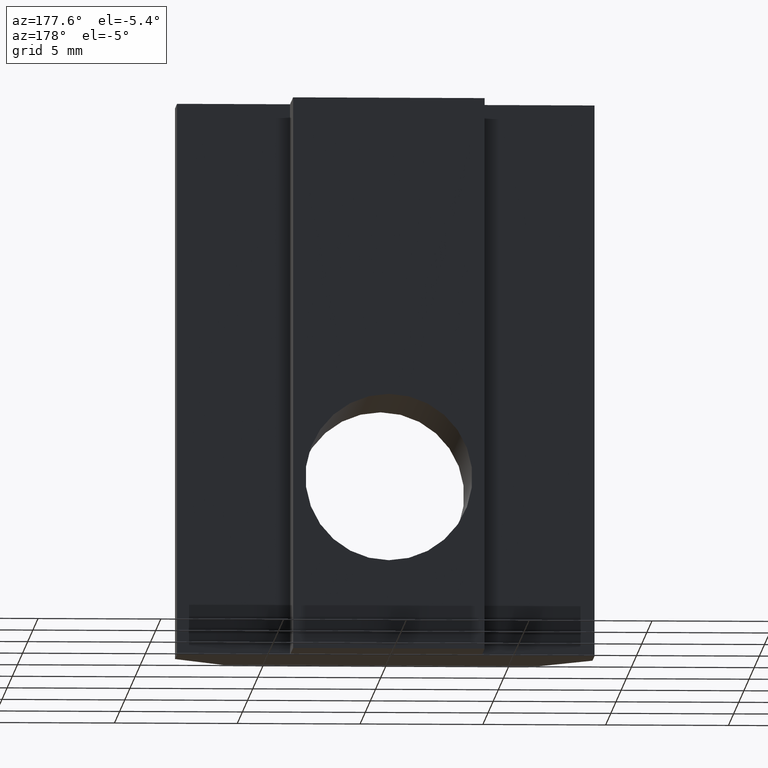
[diagram: clean part render]
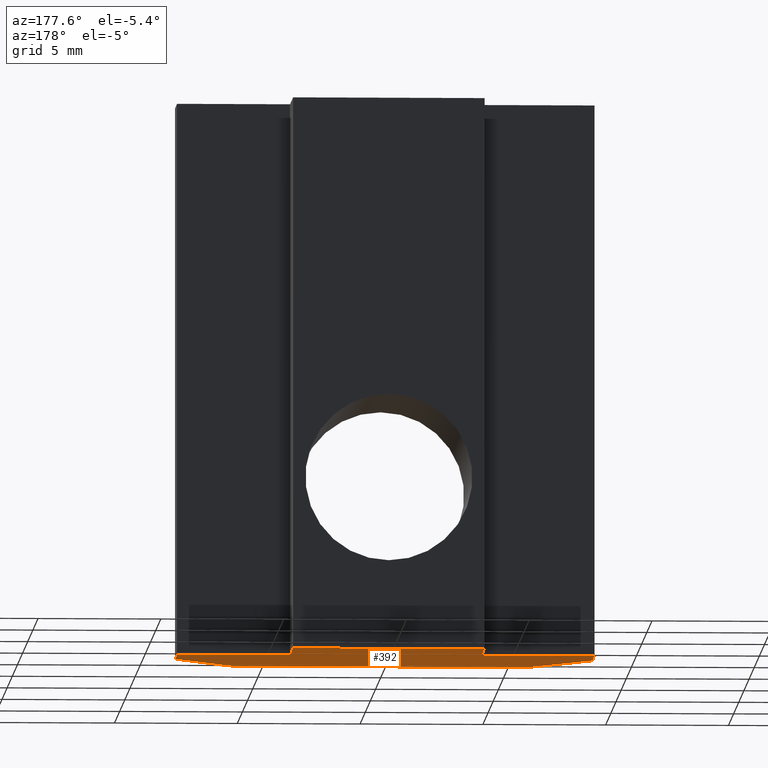
[diagram: same view with one face highlighted and labeled with its STEP entity id]
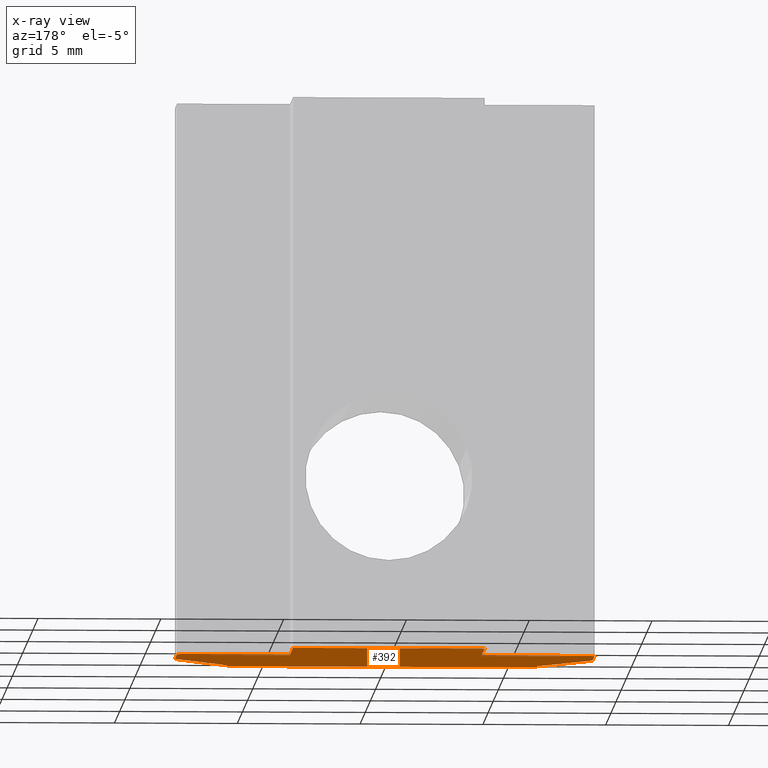
[diagram: x-ray of the same camera — body ghosted, the highlighted face saturated]
A machine part, auxiliary view. The second image highlights one B-rep face of the part: STEP entity #392.
The next image is the same camera in x-ray: the body ghosted, the highlighted face saturated — about 0% of this face is hidden behind the body in this view.
In plain terms, the highlighted planar face has unit normal (0, 0, -1).
Its self-contained STEP definition (entity closure, byte-faithful):
#4 = CARTESIAN_POINT ( 'NONE',  ( 5.999999999999998200, -2.872400319922979400E-015, 0.0000000000000000000 ) ) ;
#6 = CARTESIAN_POINT ( 'NONE',  ( -8.500000000000001800, 3.000000000000000900, 0.0000000000000000000 ) ) ;
#28 = CARTESIAN_POINT ( 'NONE',  ( 5.204170427930421300E-015, -7.200000000000000200, 0.0000000000000000000 ) ) ;
#41 = DIRECTION ( 'NONE',  ( -1.000000000000000000, 0.0000000000000000000, 0.0000000000000000000 ) ) ;
#42 = DIRECTION ( 'NONE',  ( -1.000000000000000000, 0.0000000000000000000, -0.0000000000000000000 ) ) ;
#45 = CARTESIAN_POINT ( 'NONE',  ( 8.499999999999998200, 3.000000000000000900, 0.0000000000000000000 ) ) ;
#70 = DIRECTION ( 'NONE',  ( -1.000000000000000000, -3.771137991253926600E-016, 0.0000000000000000000 ) ) ;
#71 = DIRECTION ( 'NONE',  ( 0.0000000000000000000, -1.000000000000000000, 0.0000000000000000000 ) ) ;
#88 = CARTESIAN_POINT ( 'NONE',  ( -3.900000000000005200, 7.999999999999998200, 0.0000000000000000000 ) ) ;
#91 = CARTESIAN_POINT ( 'NONE',  ( -8.500000000000001800, 5.000000000000000000, 0.0000000000000000000 ) ) ;
#104 = PLANE ( 'NONE',  #249 ) ;
#105 = DIRECTION ( 'NONE',  ( 0.0000000000000000000, 1.000000000000000000, 0.0000000000000000000 ) ) ;
#106 = DIRECTION ( 'NONE',  ( 0.0000000000000000000, 0.0000000000000000000, -1.000000000000000000 ) ) ;
#111 = CARTESIAN_POINT ( 'NONE',  ( 8.499999999999998200, 5.000000000000000900, 0.0000000000000000000 ) ) ;
#112 = DIRECTION ( 'NONE',  ( -1.000000000000000000, -2.224004456380521400E-016, 0.0000000000000000000 ) ) ;
#114 = CARTESIAN_POINT ( 'NONE',  ( 3.899999999999996400, 8.000000000000000000, 0.0000000000000000000 ) ) ;
#115 = DIRECTION ( 'NONE',  ( 8.673617379884041400E-016, -1.000000000000000000, 0.0000000000000000000 ) ) ;
#121 = DIRECTION ( 'NONE',  ( 0.6401843996644800400, -0.7682212795973756300, 0.0000000000000000000 ) ) ;
#122 = DIRECTION ( 'NONE',  ( 1.000000000000000000, -1.169020134121796800E-016, -0.0000000000000000000 ) ) ;
#124 = CARTESIAN_POINT ( 'NONE',  ( 3.899999999999997200, 4.999999999999999100, 0.0000000000000000000 ) ) ;
#126 = CARTESIAN_POINT ( 'NONE',  ( -3.900000000000002600, 5.000000000000000000, 0.0000000000000000000 ) ) ;
#129 = CARTESIAN_POINT ( 'NONE',  ( 5.999999999999998200, -2.872400319922979400E-015, 0.0000000000000000000 ) ) ;
#130 = DIRECTION ( 'NONE',  ( -2.891205793294677800E-016, 1.000000000000000000, 0.0000000000000000000 ) ) ;
#134 = DIRECTION ( 'NONE',  ( 0.6401843996644793800, 0.7682212795973761800, 0.0000000000000000000 ) ) ;
#140 = LINE ( 'NONE', #129, #141 ) ;
#141 = VECTOR ( 'NONE', #134, 1000.000000000000300 ) ;
#150 = LINE ( 'NONE', #126, #151 ) ;
#151 = VECTOR ( 'NONE', #41, 1000.000000000000000 ) ;
#160 = LINE ( 'NONE', #4, #162 ) ;
#162 = VECTOR ( 'NONE', #122, 1000.000000000000000 ) ;
#167 = LINE ( 'NONE', #6, #168 ) ;
#168 = VECTOR ( 'NONE', #121, 1000.000000000000200 ) ;
#172 = VECTOR ( 'NONE', #71, 1000.000000000000000 ) ;
#174 = LINE ( 'NONE', #111, #177 ) ;
#177 = VECTOR ( 'NONE', #70, 1000.000000000000000 ) ;
#178 = LINE ( 'NONE', #114, #180 ) ;
#180 = VECTOR ( 'NONE', #112, 1000.000000000000000 ) ;
#182 = ORIENTED_EDGE ( 'NONE', *, *, #236, .F. ) ;
#183 = ORIENTED_EDGE ( 'NONE', *, *, #241, .F. ) ;
#184 = ORIENTED_EDGE ( 'NONE', *, *, #314, .F. ) ;
#185 = ORIENTED_EDGE ( 'NONE', *, *, #267, .F. ) ;
#199 = ORIENTED_EDGE ( 'NONE', *, *, #277, .F. ) ;
#236 = EDGE_CURVE ( 'NONE', #497, #510, #379, .T. ) ;
#241 = EDGE_CURVE ( 'NONE', #510, #500, #174, .T. ) ;
#249 = AXIS2_PLACEMENT_3D ( 'NONE', #28, #106, #42 ) ;
#267 = EDGE_CURVE ( 'NONE', #494, #498, #178, .T. ) ;
#272 = EDGE_CURVE ( 'NONE', #513, #502, #422, .T. ) ;
#273 = EDGE_CURVE ( 'NONE', #498, #517, #370, .T. ) ;
#277 = EDGE_CURVE ( 'NONE', #495, #497, #140, .T. ) ;
#299 = EDGE_CURVE ( 'NONE', #517, #513, #150, .T. ) ;
#308 = EDGE_CURVE ( 'NONE', #493, #495, #160, .T. ) ;
#311 = EDGE_CURVE ( 'NONE', #502, #493, #167, .T. ) ;
#314 = EDGE_CURVE ( 'NONE', #500, #494, #520, .T. ) ;
#320 = ORIENTED_EDGE ( 'NONE', *, *, #273, .F. ) ;
#323 = ORIENTED_EDGE ( 'NONE', *, *, #299, .F. ) ;
#325 = ORIENTED_EDGE ( 'NONE', *, *, #311, .F. ) ;
#335 = ORIENTED_EDGE ( 'NONE', *, *, #272, .F. ) ;
#348 = ORIENTED_EDGE ( 'NONE', *, *, #308, .F. ) ;
#355 = EDGE_LOOP ( 'NONE', ( #199, #348, #325, #335, #323, #320, #185, #184, #183, #182 ) ) ;
#370 = LINE ( 'NONE', #88, #408 ) ;
#378 = VECTOR ( 'NONE', #105, 1000.000000000000000 ) ;
#379 = LINE ( 'NONE', #45, #378 ) ;
#392 = ADVANCED_FACE ( 'NONE', ( #535 ), #104, .T. ) ;
#408 = VECTOR ( 'NONE', #115, 1000.000000000000000 ) ;
#422 = LINE ( 'NONE', #91, #172 ) ;
#445 = CARTESIAN_POINT ( 'NONE',  ( 5.999999999999998200, -2.872400319922979400E-015, 0.0000000000000000000 ) ) ;
#454 = CARTESIAN_POINT ( 'NONE',  ( 8.499999999999998200, 3.000000000000000900, 0.0000000000000000000 ) ) ;
#455 = CARTESIAN_POINT ( 'NONE',  ( -3.900000000000002600, 5.000000000000000000, 0.0000000000000000000 ) ) ;
#458 = CARTESIAN_POINT ( 'NONE',  ( 8.499999999999998200, 5.000000000000000900, 0.0000000000000000000 ) ) ;
#459 = CARTESIAN_POINT ( 'NONE',  ( -8.500000000000001800, 3.000000000000000900, 0.0000000000000000000 ) ) ;
#462 = CARTESIAN_POINT ( 'NONE',  ( 3.899999999999996400, 8.000000000000000000, 0.0000000000000000000 ) ) ;
#463 = CARTESIAN_POINT ( 'NONE',  ( 3.899999999999997200, 4.999999999999999100, 0.0000000000000000000 ) ) ;
#464 = CARTESIAN_POINT ( 'NONE',  ( -8.500000000000001800, 5.000000000000000000, 0.0000000000000000000 ) ) ;
#466 = CARTESIAN_POINT ( 'NONE',  ( -3.900000000000005200, 7.999999999999998200, 0.0000000000000000000 ) ) ;
#468 = CARTESIAN_POINT ( 'NONE',  ( -5.999999999999998200, -1.469576158976823800E-015, 0.0000000000000000000 ) ) ;
#493 = VERTEX_POINT ( 'NONE', #468 ) ;
#494 = VERTEX_POINT ( 'NONE', #462 ) ;
#495 = VERTEX_POINT ( 'NONE', #445 ) ;
#497 = VERTEX_POINT ( 'NONE', #454 ) ;
#498 = VERTEX_POINT ( 'NONE', #466 ) ;
#500 = VERTEX_POINT ( 'NONE', #463 ) ;
#502 = VERTEX_POINT ( 'NONE', #459 ) ;
#510 = VERTEX_POINT ( 'NONE', #458 ) ;
#513 = VERTEX_POINT ( 'NONE', #464 ) ;
#517 = VERTEX_POINT ( 'NONE', #455 ) ;
#520 = LINE ( 'NONE', #124, #521 ) ;
#521 = VECTOR ( 'NONE', #130, 1000.000000000000000 ) ;
#535 = FACE_OUTER_BOUND ( 'NONE', #355, .T. ) ;